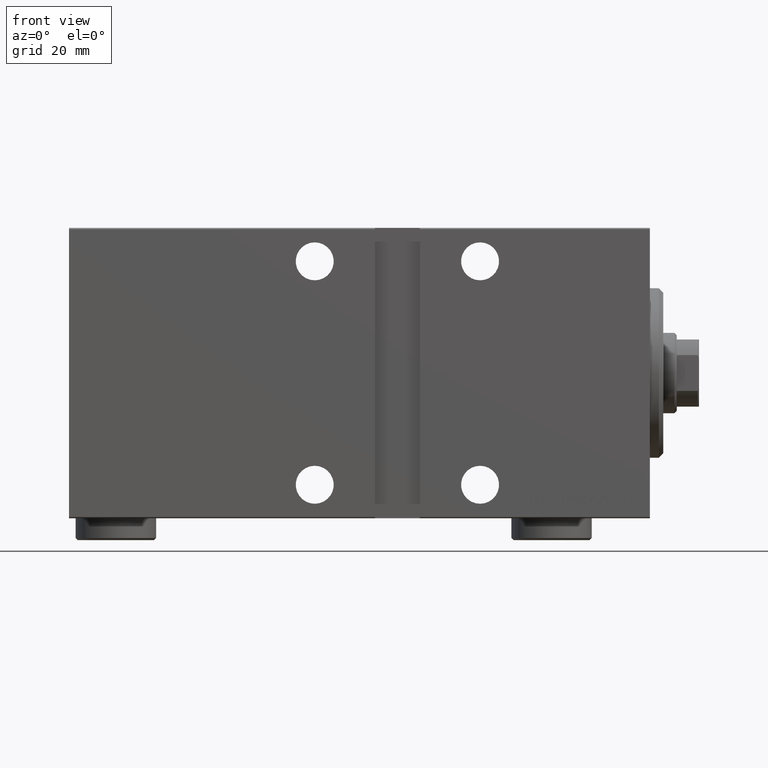
[diagram: clean part render]
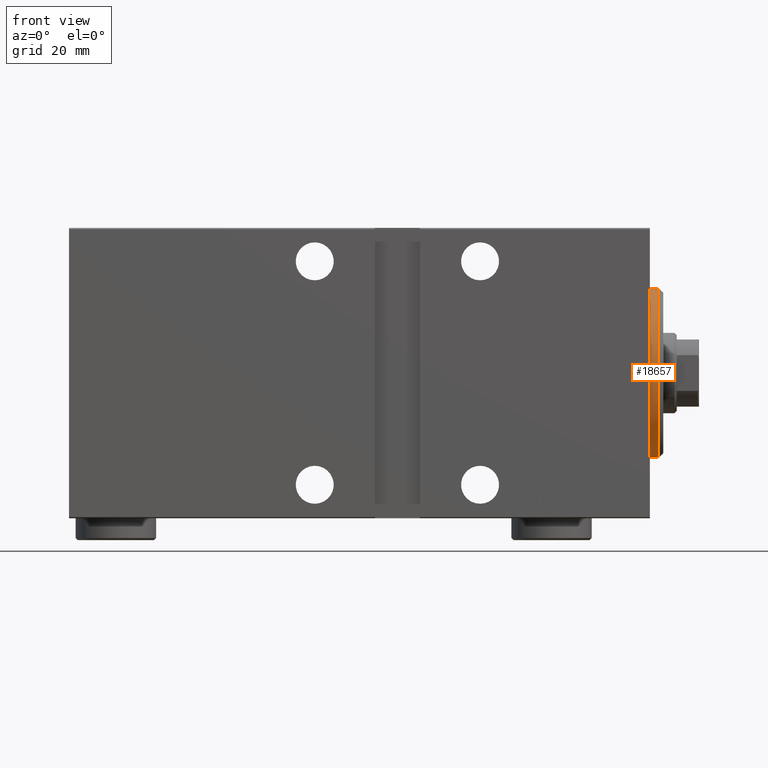
[diagram: same view with one face highlighted and labeled with its STEP entity id]
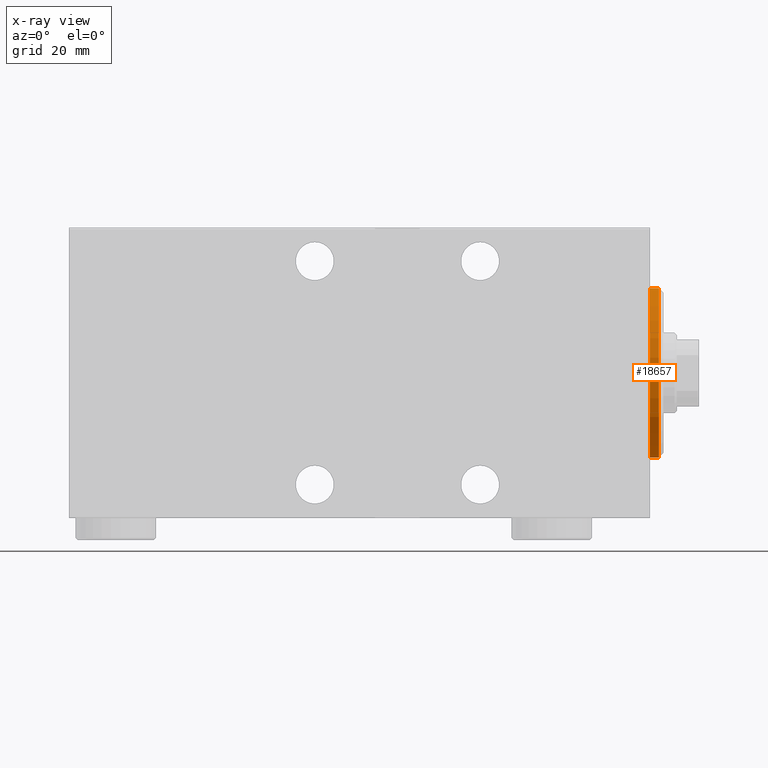
[diagram: x-ray of the same camera — body ghosted, the highlighted face saturated]
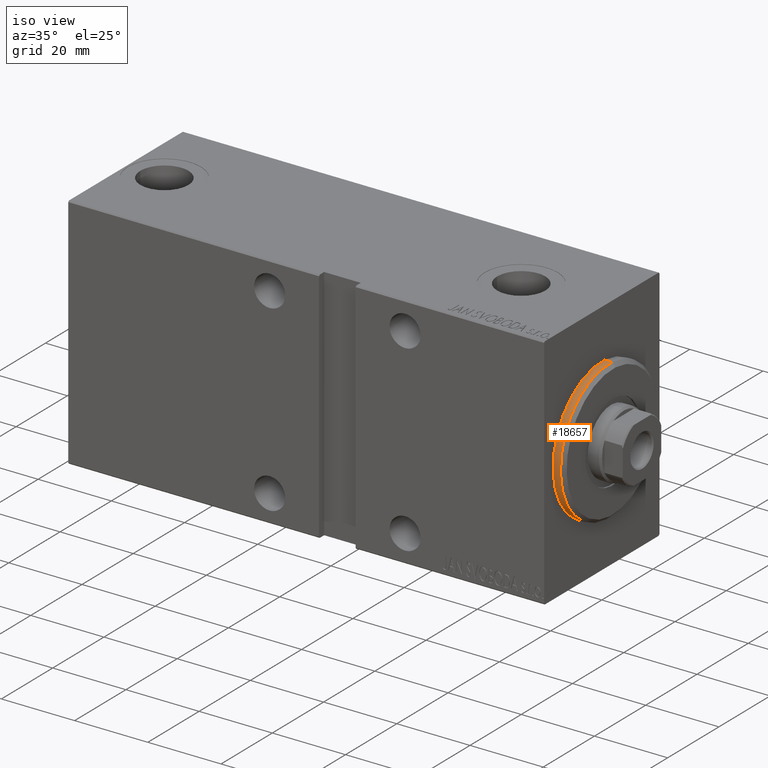
[diagram: same view with one face highlighted and labeled with its STEP entity id]
A machine part, front view. The second image highlights one B-rep face of the part: STEP entity #18657.
The next image is the same camera in x-ray: the body ghosted, the highlighted face saturated — about 0% of this face is hidden behind the body in this view.
A second angle (iso view) of the same face is appended — the face is thin or edge-on in the first view.
In plain terms, the highlighted cylindrical surface (partial cylindrical patch) has radius 19 mm, axis along (-1, 0, 0).
Its self-contained STEP definition (entity closure, byte-faithful):
#2588 = VECTOR ( 'NONE', #31404, 1000.000000000000000 ) ;
#3669 = EDGE_LOOP ( 'NONE', ( #42663, #35036, #23504, #9020 ) ) ;
#7737 = EDGE_CURVE ( 'NONE', #20507, #36264, #30234, .T. ) ;
#7759 = AXIS2_PLACEMENT_3D ( 'NONE', #43553, #36875, #43776 ) ;
#8046 = VECTOR ( 'NONE', #22882, 1000.000000000000000 ) ;
#8591 = EDGE_CURVE ( 'NONE', #36264, #17403, #28070, .T. ) ;
#9020 = ORIENTED_EDGE ( 'NONE', *, *, #33181, .T. ) ;
#11076 = AXIS2_PLACEMENT_3D ( 'NONE', #43540, #35397, #18492 ) ;
#11464 = FACE_OUTER_BOUND ( 'NONE', #3669, .T. ) ;
#11838 = CARTESIAN_POINT ( 'NONE',  ( 1.999999999999992228, 2.326828918379970970E-15, -19.00000000000000000 ) ) ;
#14025 = EDGE_CURVE ( 'NONE', #20507, #24608, #35574, .T. ) ;
#14517 = CARTESIAN_POINT ( 'NONE',  ( 3.000000000000000000, 0.000000000000000000, 19.00000000000000000 ) ) ;
#15239 = DIRECTION ( 'NONE',  ( -1.000000000000000000, -0.000000000000000000, -0.000000000000000000 ) ) ;
#17135 = CARTESIAN_POINT ( 'NONE',  ( 1.999999999999992228, 0.000000000000000000, 19.00000000000000000 ) ) ;
#17403 = VERTEX_POINT ( 'NONE', #37028 ) ;
#18492 = DIRECTION ( 'NONE',  ( 0.000000000000000000, 0.000000000000000000, -1.000000000000000000 ) ) ;
#18657 = ADVANCED_FACE ( 'NONE', ( #11464 ), #39025, .T. ) ;
#20507 = VERTEX_POINT ( 'NONE', #11838 ) ;
#22224 = CARTESIAN_POINT ( 'NONE',  ( 3.000000000000000000, 2.326828918379970970E-15, -19.00000000000000000 ) ) ;
#22882 = DIRECTION ( 'NONE',  ( -1.000000000000000000, -0.000000000000000000, -0.000000000000000000 ) ) ;
#23504 = ORIENTED_EDGE ( 'NONE', *, *, #8591, .T. ) ;
#24608 = VERTEX_POINT ( 'NONE', #43973 ) ;
#25204 = AXIS2_PLACEMENT_3D ( 'NONE', #32343, #15239, #42583 ) ;
#25490 = CIRCLE ( 'NONE', #7759, 19.00000000000000000 ) ;
#28070 = LINE ( 'NONE', #14517, #2588 ) ;
#30234 = CIRCLE ( 'NONE', #11076, 19.00000000000000000 ) ;
#31404 = DIRECTION ( 'NONE',  ( -1.000000000000000000, -0.000000000000000000, -0.000000000000000000 ) ) ;
#32343 = CARTESIAN_POINT ( 'NONE',  ( 3.000000000000000000, 0.000000000000000000, 0.000000000000000000 ) ) ;
#33181 = EDGE_CURVE ( 'NONE', #17403, #24608, #25490, .T. ) ;
#35036 = ORIENTED_EDGE ( 'NONE', *, *, #7737, .T. ) ;
#35397 = DIRECTION ( 'NONE',  ( -1.000000000000000000, 0.000000000000000000, 0.000000000000000000 ) ) ;
#35574 = LINE ( 'NONE', #22224, #8046 ) ;
#36264 = VERTEX_POINT ( 'NONE', #17135 ) ;
#36875 = DIRECTION ( 'NONE',  ( 1.000000000000000000, -0.000000000000000000, 0.000000000000000000 ) ) ;
#37028 = CARTESIAN_POINT ( 'NONE',  ( 0.000000000000000000, 0.000000000000000000, 19.00000000000000000 ) ) ;
#39025 = CYLINDRICAL_SURFACE ( 'NONE', #25204, 19.00000000000000000 ) ;
#42583 = DIRECTION ( 'NONE',  ( 0.000000000000000000, 0.000000000000000000, 1.000000000000000000 ) ) ;
#42663 = ORIENTED_EDGE ( 'NONE', *, *, #14025, .F. ) ;
#43540 = CARTESIAN_POINT ( 'NONE',  ( 1.999999999999992228, 0.000000000000000000, 0.000000000000000000 ) ) ;
#43553 = CARTESIAN_POINT ( 'NONE',  ( 0.000000000000000000, 0.000000000000000000, 0.000000000000000000 ) ) ;
#43776 = DIRECTION ( 'NONE',  ( 0.000000000000000000, 0.000000000000000000, -1.000000000000000000 ) ) ;
#43973 = CARTESIAN_POINT ( 'NONE',  ( 0.000000000000000000, 2.326828918379970970E-15, -19.00000000000000000 ) ) ;